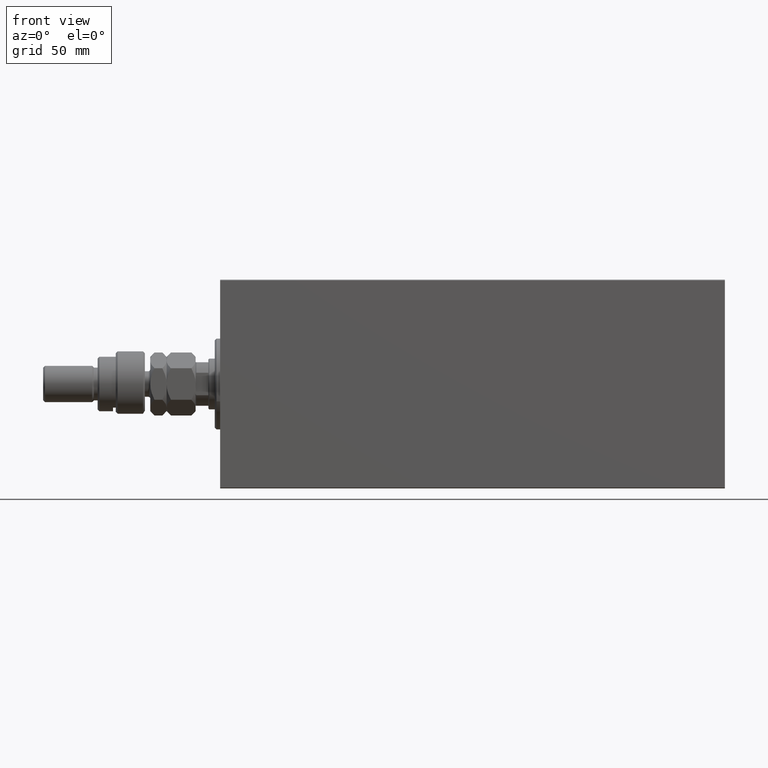
[diagram: clean part render]
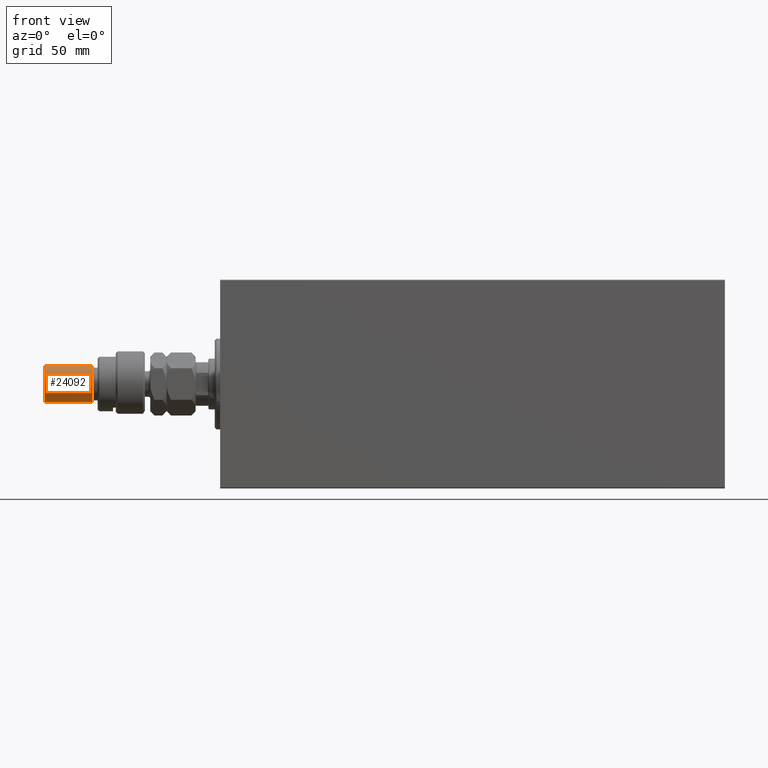
[diagram: same view with one face highlighted and labeled with its STEP entity id]
A machine part, front view. The second image highlights one B-rep face of the part: STEP entity #24092.
In plain terms, the highlighted cylindrical surface (edge-blend (fillet) strip) has radius 10 mm, axis along (1, -0, -0).
Its self-contained STEP definition (entity closure, byte-faithful):
#447 = CIRCLE ( 'NONE', #11040, 10.00000000000000000 ) ;
#844 = DIRECTION ( 'NONE',  ( 0.000000000000000000, 0.000000000000000000, -1.000000000000000000 ) ) ;
#1682 = EDGE_CURVE ( 'NONE', #15528, #43398, #46012, .T. ) ;
#1855 = ORIENTED_EDGE ( 'NONE', *, *, #25131, .T. ) ;
#2722 = LINE ( 'NONE', #27994, #22398 ) ;
#3051 = VERTEX_POINT ( 'NONE', #46093 ) ;
#5657 = DIRECTION ( 'NONE',  ( -1.000000000000000000, 0.000000000000000000, 0.000000000000000000 ) ) ;
#6281 = LINE ( 'NONE', #20444, #36922 ) ;
#7980 = DIRECTION ( 'NONE',  ( 1.000000000000000000, 0.000000000000000000, 0.000000000000000000 ) ) ;
#9188 = DIRECTION ( 'NONE',  ( -0.000000000000000000, -0.000000000000000000, -1.000000000000000000 ) ) ;
#10914 = EDGE_CURVE ( 'NONE', #21760, #3051, #447, .T. ) ;
#11040 = AXIS2_PLACEMENT_3D ( 'NONE', #26604, #844, #37417 ) ;
#11526 = CARTESIAN_POINT ( 'NONE',  ( 0.000000000000000000, 0.000000000000000000, 29.00000000000000711 ) ) ;
#13284 = EDGE_CURVE ( 'NONE', #21760, #43398, #2722, .T. ) ;
#15528 = VERTEX_POINT ( 'NONE', #40685 ) ;
#16057 = FACE_OUTER_BOUND ( 'NONE', #20328, .T. ) ;
#18073 = AXIS2_PLACEMENT_3D ( 'NONE', #20519, #9188, #5657 ) ;
#20328 = EDGE_LOOP ( 'NONE', ( #44416, #32141, #1855, #34675 ) ) ;
#20444 = CARTESIAN_POINT ( 'NONE',  ( -10.00000000000000000, 0.000000000000000000, 56.00000000000000711 ) ) ;
#20519 = CARTESIAN_POINT ( 'NONE',  ( 0.000000000000000000, 0.000000000000000000, 56.00000000000000711 ) ) ;
#20673 = DIRECTION ( 'NONE',  ( -0.000000000000000000, -0.000000000000000000, -1.000000000000000000 ) ) ;
#21760 = VERTEX_POINT ( 'NONE', #44557 ) ;
#21926 = DIRECTION ( 'NONE',  ( -0.000000000000000000, -0.000000000000000000, 1.000000000000000000 ) ) ;
#22398 = VECTOR ( 'NONE', #42344, 1000.000000000000000 ) ;
#24092 = ADVANCED_FACE ( 'NONE', ( #16057 ), #30449, .T. ) ;
#25131 = EDGE_CURVE ( 'NONE', #3051, #15528, #6281, .T. ) ;
#26604 = CARTESIAN_POINT ( 'NONE',  ( 0.000000000000000000, 0.000000000000000000, 54.99999999999998579 ) ) ;
#27994 = CARTESIAN_POINT ( 'NONE',  ( 10.00000000000000000, 1.224646799147353256E-15, 56.00000000000000711 ) ) ;
#30449 = CYLINDRICAL_SURFACE ( 'NONE', #18073, 10.00000000000000000 ) ;
#32141 = ORIENTED_EDGE ( 'NONE', *, *, #10914, .T. ) ;
#34675 = ORIENTED_EDGE ( 'NONE', *, *, #1682, .T. ) ;
#36922 = VECTOR ( 'NONE', #20673, 1000.000000000000000 ) ;
#37417 = DIRECTION ( 'NONE',  ( 1.000000000000000000, 0.000000000000000000, 0.000000000000000000 ) ) ;
#40685 = CARTESIAN_POINT ( 'NONE',  ( -10.00000000000000000, 0.000000000000000000, 29.00000000000000711 ) ) ;
#42246 = AXIS2_PLACEMENT_3D ( 'NONE', #11526, #21926, #7980 ) ;
#42344 = DIRECTION ( 'NONE',  ( -0.000000000000000000, -0.000000000000000000, -1.000000000000000000 ) ) ;
#43398 = VERTEX_POINT ( 'NONE', #44971 ) ;
#44416 = ORIENTED_EDGE ( 'NONE', *, *, #13284, .F. ) ;
#44557 = CARTESIAN_POINT ( 'NONE',  ( 10.00000000000000000, 1.224646799147353256E-15, 54.99999999999998579 ) ) ;
#44971 = CARTESIAN_POINT ( 'NONE',  ( 10.00000000000000000, 1.224646799147353256E-15, 29.00000000000000711 ) ) ;
#46012 = CIRCLE ( 'NONE', #42246, 10.00000000000000000 ) ;
#46093 = CARTESIAN_POINT ( 'NONE',  ( -10.00000000000000000, 0.000000000000000000, 54.99999999999998579 ) ) ;